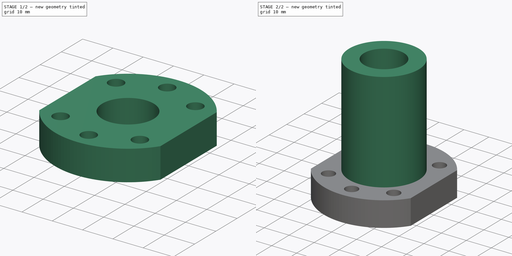
[diagram: build sequence overview — one tinted view per stage of 2, left to right]
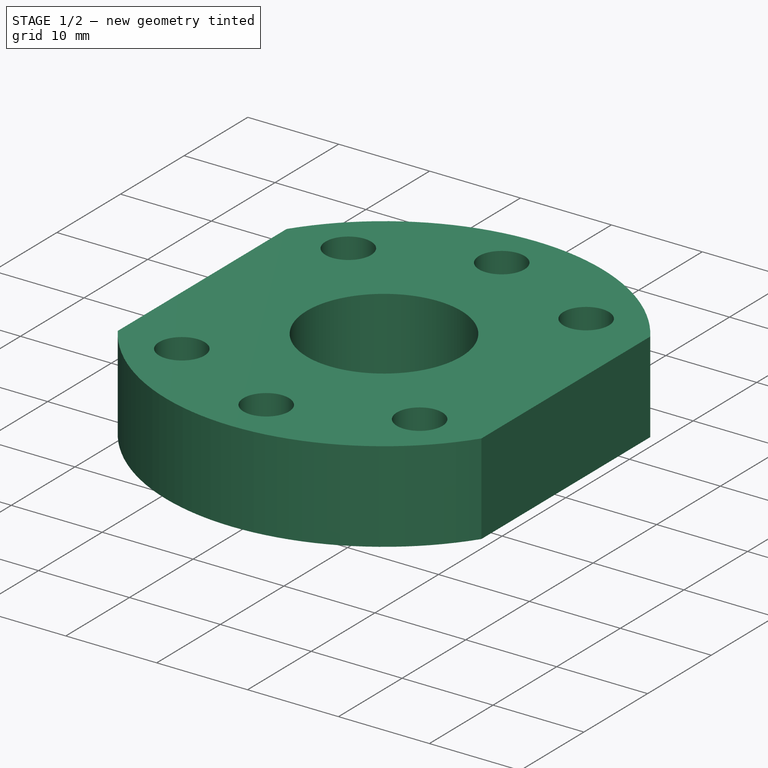
[diagram: stage 1 of 2 — iso view after this stage's code; geometry added in this stage tinted green]
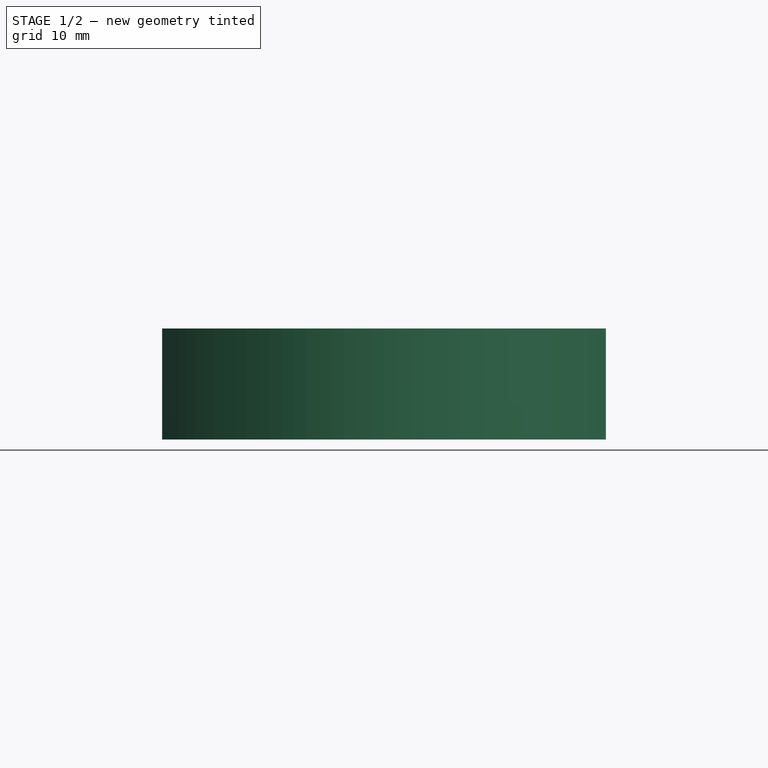
[diagram: stage 1 of 2 — front view after this stage's code; geometry added in this stage tinted green]
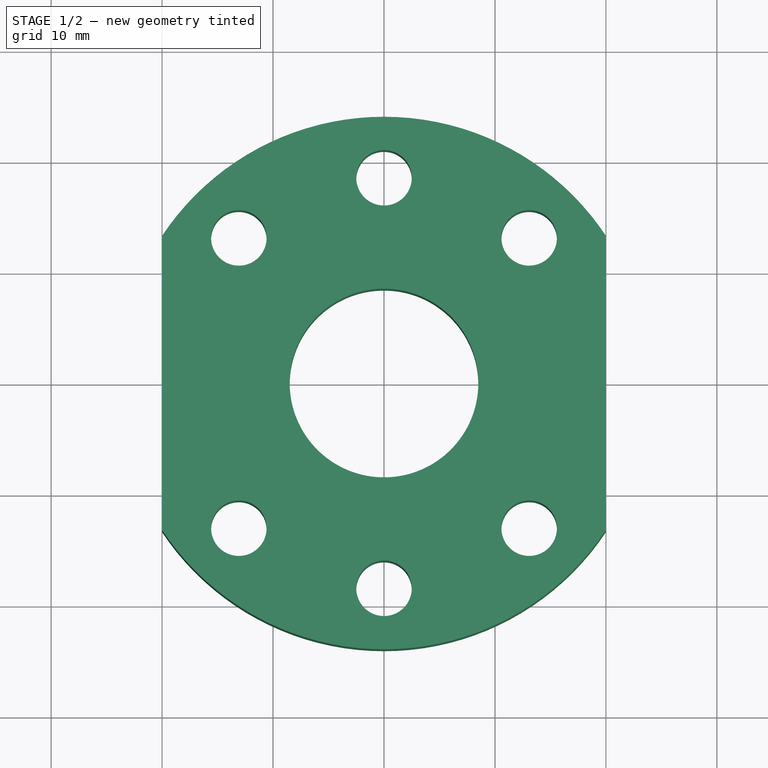
[diagram: stage 1 of 2 — top view after this stage's code; geometry added in this stage tinted green]
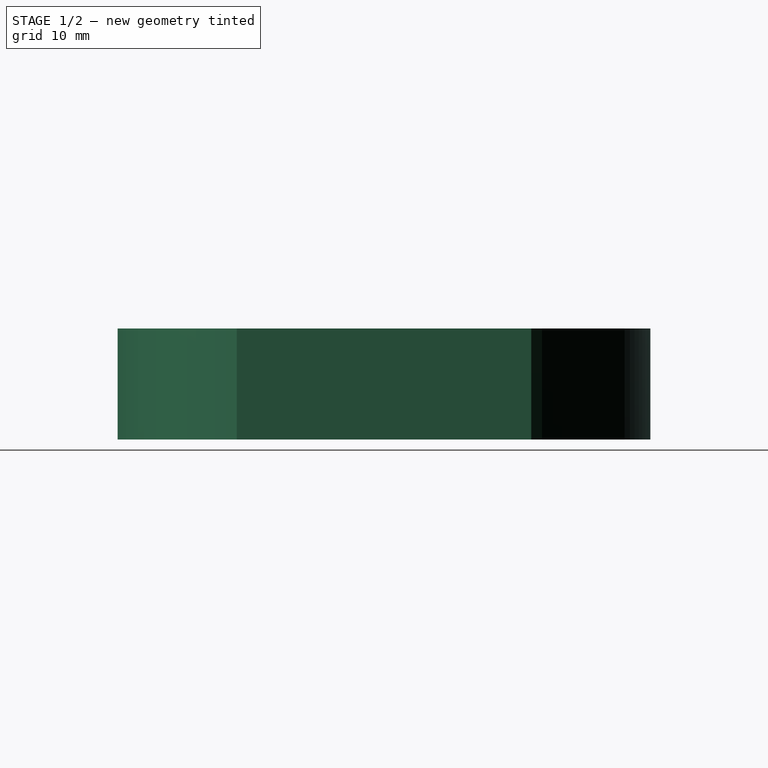
[diagram: stage 1 of 2 — right view after this stage's code; geometry added in this stage tinted green]
FCSTD DOCUMENT  (FreeCAD 0.14R3702 (Git))
Label: ballnuts
License: CC-BY 3.0
LicenseURL: http://creativecommons.org/licenses/by/3.0/
objects: Sketcher::SketchObject×2, PartDesign::Pad×2
note: 6 computed .brp shape members not serialized (recipe doc carries the construction recipe); baked Part::Feature solids carry a one-line shape summary decoded from their .brp

FEATURE [Sketcher::SketchObject] Sketch
  sketch-geometry (11):
    g0: ArcOfCircle CenterX=0 CenterY=0 CenterZ=0 NormalX=0 NormalY=0 NormalZ=1 Radius=24 StartAngle=0.585686 EndAngle=2.55591
    g1: ArcOfCircle CenterX=0 CenterY=0 CenterZ=0 NormalX=0 NormalY=0 NormalZ=1 Radius=24 StartAngle=3.72728 EndAngle=5.6975
    g2: LineSegment StartX=20 StartY=13.2665 StartZ=0 EndX=20 EndY=-13.2665 EndZ=0
    g3: LineSegment StartX=-20 StartY=13.2665 StartZ=0 EndX=-20 EndY=-13.2665 EndZ=0
    g4: Circle CenterX=0 CenterY=18.5 CenterZ=0 NormalX=0 NormalY=0 NormalZ=1 Radius=2.5
    g5: Circle CenterX=0 CenterY=-18.5 CenterZ=0 NormalX=0 NormalY=0 NormalZ=1 Radius=2.5
    g6: Circle CenterX=0 CenterY=0 CenterZ=0 NormalX=0 NormalY=0 NormalZ=1 Radius=8.5
    g7: Circle CenterX=-13.0815 CenterY=13.0815 CenterZ=0 NormalX=0 NormalY=0 NormalZ=1 Radius=2.5
    g8: Circle CenterX=-13.0815 CenterY=-13.0815 CenterZ=0 NormalX=0 NormalY=0 NormalZ=1 Radius=2.5
    g9: Circle CenterX=13.0815 CenterY=-13.0815 CenterZ=0 NormalX=0 NormalY=0 NormalZ=1 Radius=2.5
    g10: Circle CenterX=13.0815 CenterY=13.0815 CenterZ=0 NormalX=0 NormalY=0 NormalZ=1 Radius=2.5
  constraints (32):
    c: Coincident(g0,g-1)
    c: Radius(g0) = 24
    c: Coincident(g1,g-1)
    c: Radius(g1) = 24
    c: Coincident(g2,g0)
    c: Coincident(g2,g1)
    c: Vertical(g2)
    c: Coincident(g3,g0)
    c: Coincident(g3,g1)
    c: Vertical(g3)
    c: PointOnObject(g4,g-2)
    c: Radius(g4) = 2.5
    c: DistanceY(g-1,g4) = 18.5
    c: PointOnObject(g5,g-2)
    c: Radius(g5) = 2.5
    c: DistanceY(g-1,g5) = -18.5
    c: DistanceX(g0,g0) = -40
    c: Distance(g-1,g3) = 20
    c: Coincident(g6,g-1)
    c: Radius(g6) = 8.5
    c: Radius(g7) = 2.5
    c: Distance(g-1,g7) = 18.5
    c: DistanceY(g-1,g7) = 13.0815
    c: Radius(g8) = 2.5
    c: Distance(g-1,g8) = 18.5
    c: DistanceY(g-1,g8) = -13.0815
    c: Radius(g9) = 2.5
    c: Distance(g-1,g9) = 18.5
    c: DistanceY(g-1,g9) = -13.0815
    c: Radius(g10) = 2.5
    c: Distance(g-1,g10) = 18.5
    c: DistanceY(g-1,g10) = 13.0815
FEATURE [PartDesign::Pad] Pad
  Length = 10
  Length2 = 1
  Sketch = -> Sketch
  Type = 0
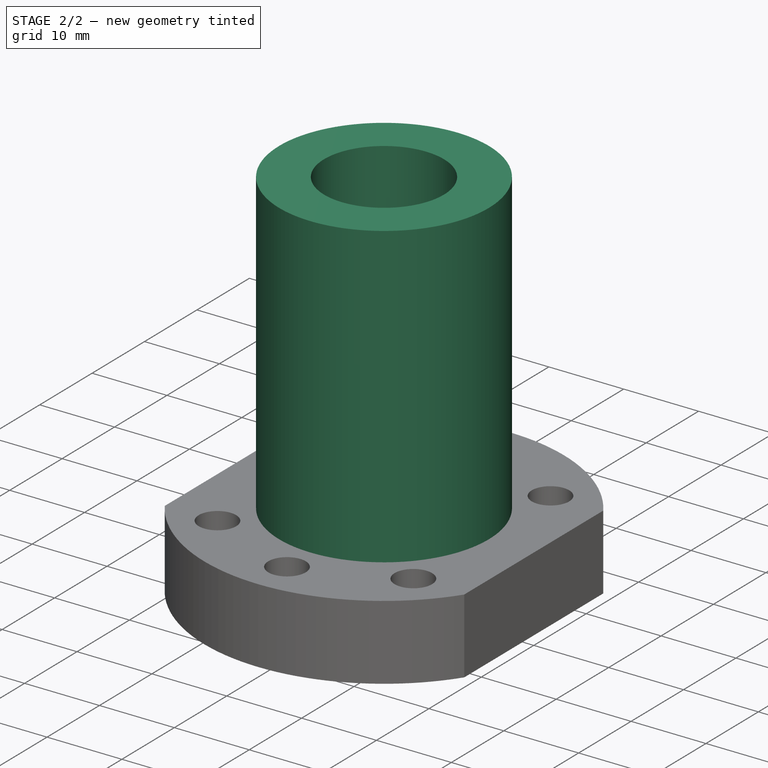
[diagram: stage 2 of 2 — iso view after this stage's code; geometry added in this stage tinted green]
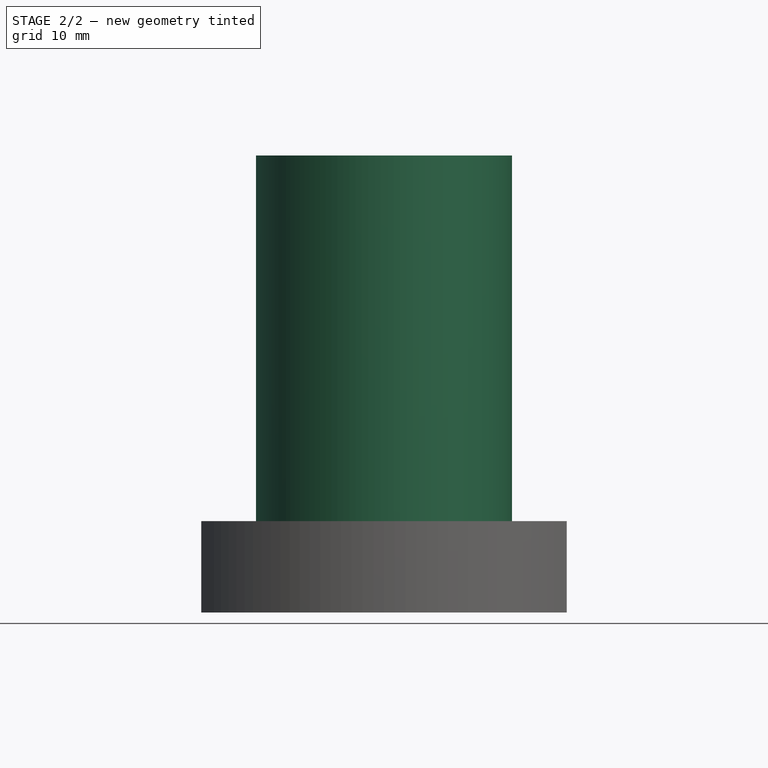
[diagram: stage 2 of 2 — front view after this stage's code; geometry added in this stage tinted green]
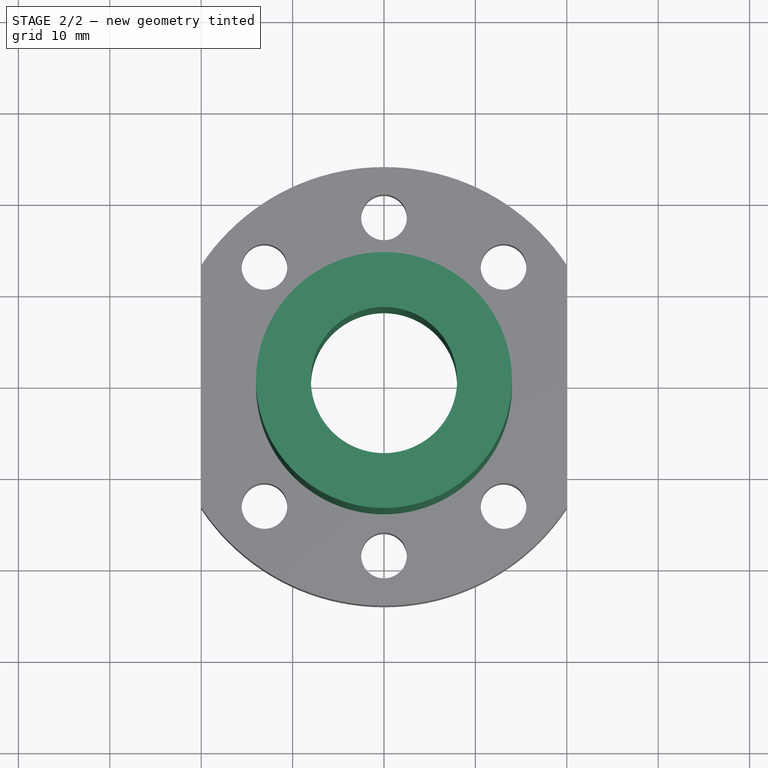
[diagram: stage 2 of 2 — top view after this stage's code; geometry added in this stage tinted green]
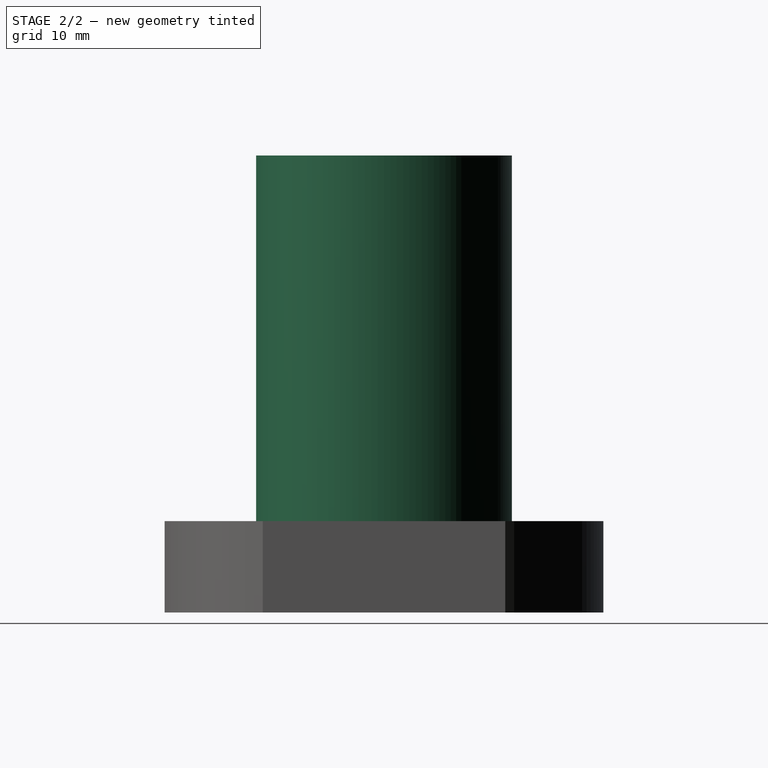
[diagram: stage 2 of 2 — right view after this stage's code; geometry added in this stage tinted green]
FEATURE [Sketcher::SketchObject] Sketch001
  Placement = pos=(0,0,10) rot=(0,0,1;0rad)
  Support = -> Pad [Face13]
  sketch-geometry (2):
    g0: Circle CenterX=0 CenterY=0 CenterZ=0 NormalX=0 NormalY=0 NormalZ=1 Radius=14
    g1: Circle CenterX=0 CenterY=0 CenterZ=0 NormalX=0 NormalY=0 NormalZ=1 Radius=8
  constraints (4):
    c: Coincident(g0,g-1)
    c: Radius(g0) = 14
    c: Coincident(g1,g-1)
    c: Radius(g1) = 8
FEATURE [PartDesign::Pad] Pad001
  Length = 40
  Length2 = 1
  Sketch = -> Sketch001
  Type = 0
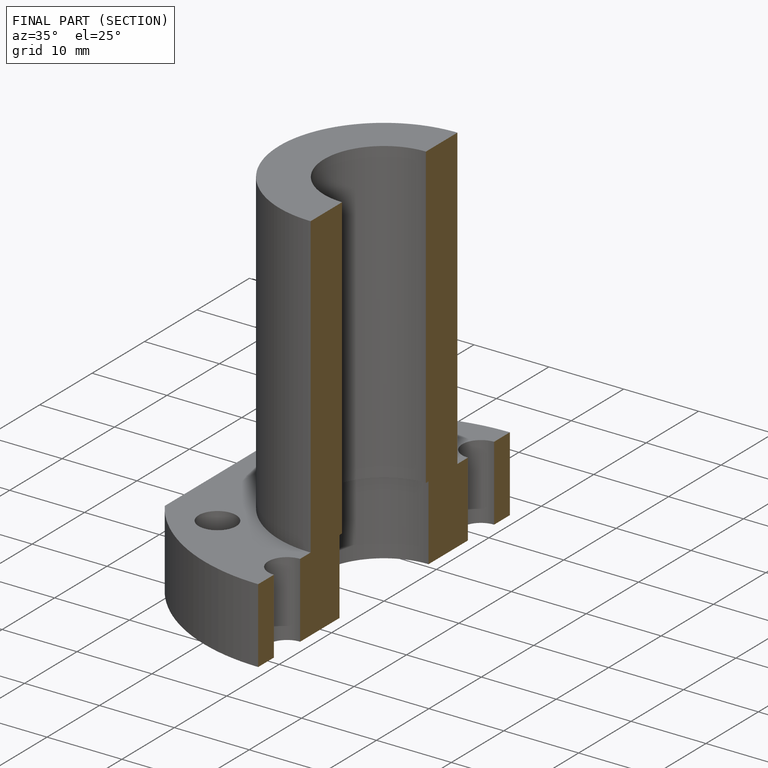
[diagram: finished part — half-section view (interior)]
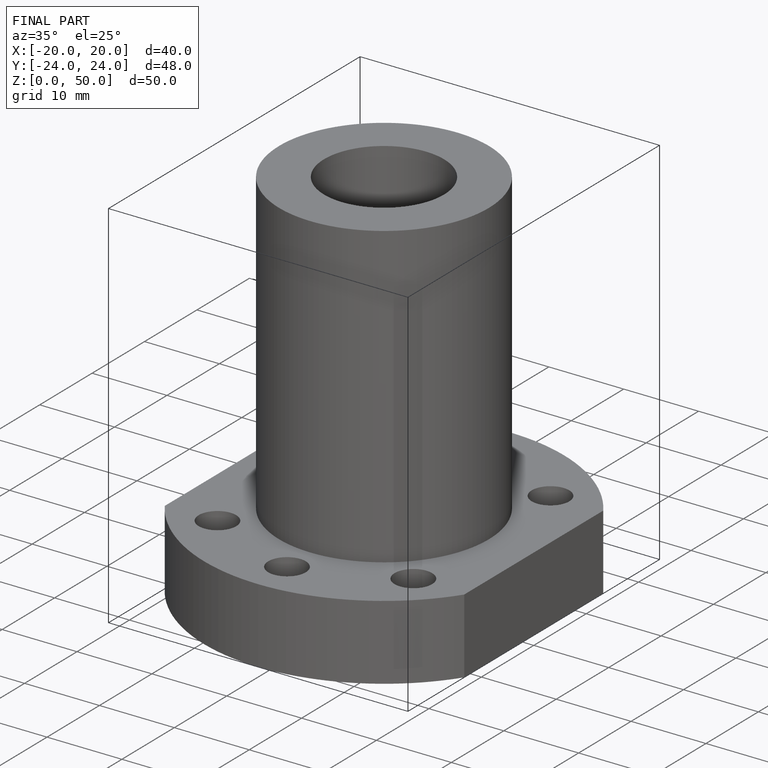
[diagram: finished part — iso view with bounding-box wireframe]
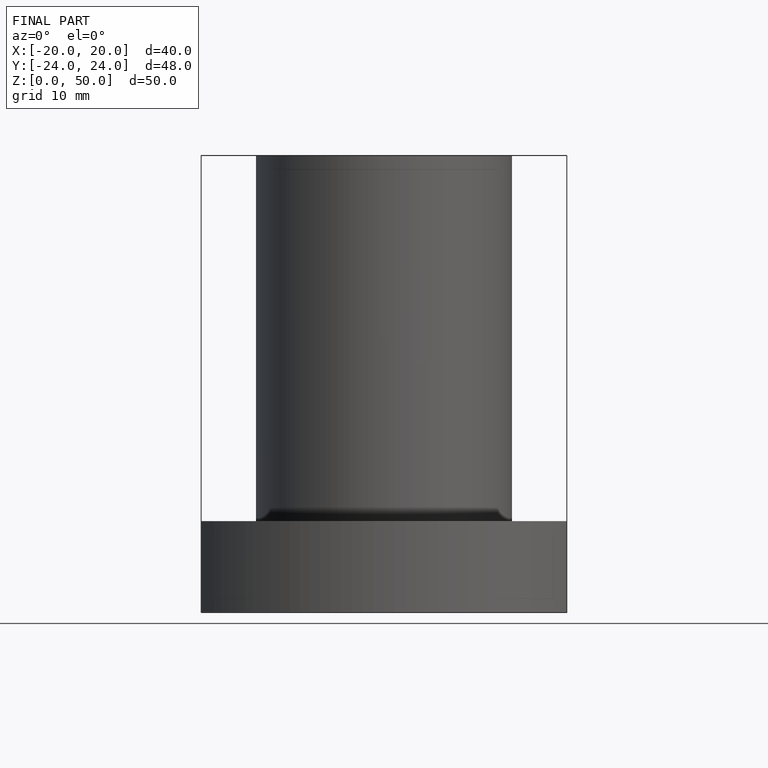
[diagram: finished part — front view with bounding-box wireframe]
